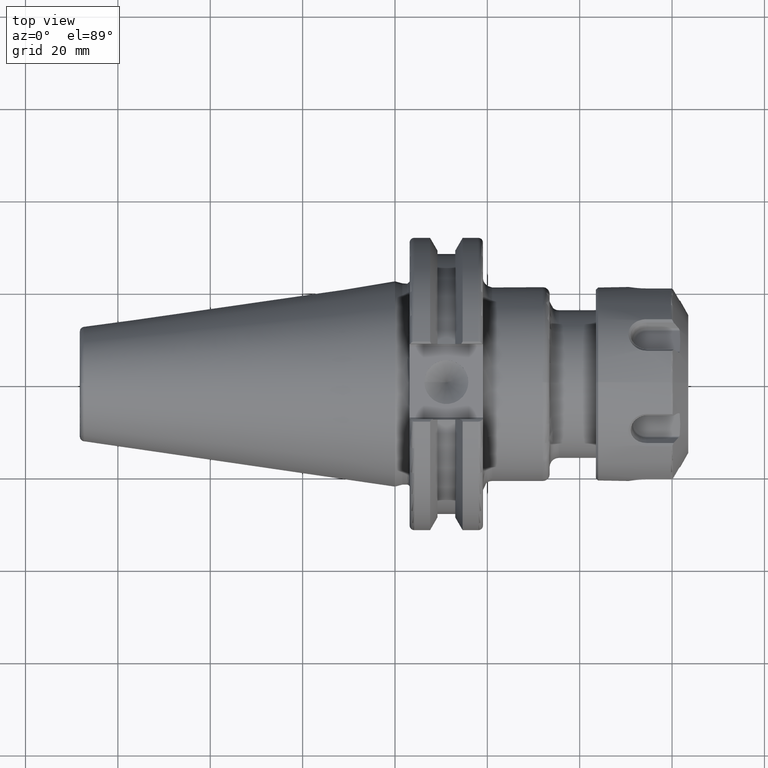
[diagram: clean part render]
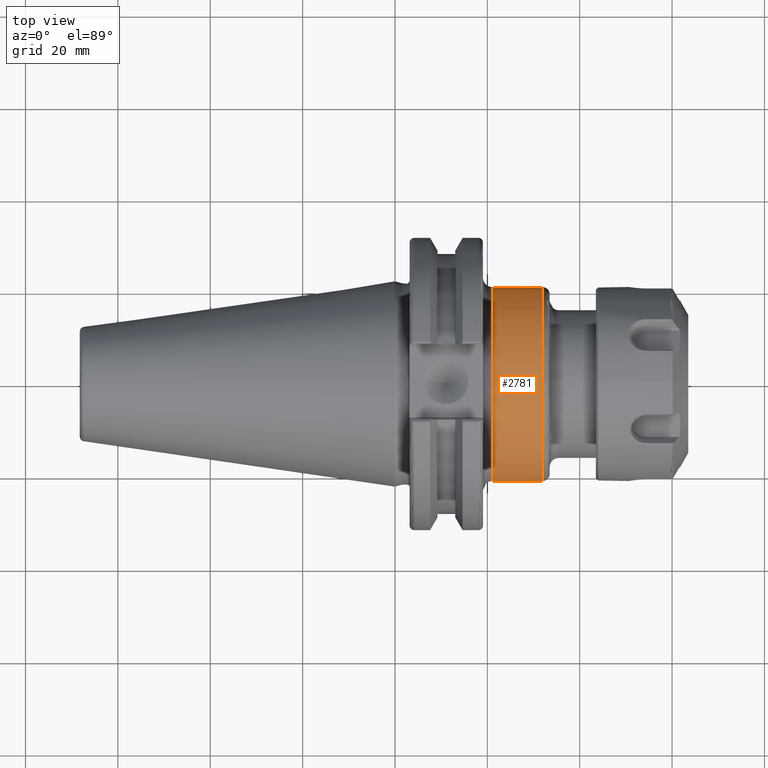
[diagram: same view with one face highlighted and labeled with its STEP entity id]
A machine part, top view. The second image highlights one B-rep face of the part: STEP entity #2781.
In plain terms, the highlighted cylindrical surface (bore or boss wall) has radius 21 mm, axis along (1, 0, 0).
Its self-contained STEP definition (entity closure, byte-faithful):
#255=CYLINDRICAL_SURFACE('',#3037,21.);
#398=FACE_OUTER_BOUND('',#566,.T.);
#566=EDGE_LOOP('',(#1956,#1957,#1958,#1959,#1960,#1961));
#745=LINE('',#4301,#924);
#924=VECTOR('',#3380,21.);
#1112=CIRCLE('',#3033,21.);
#1113=CIRCLE('',#3034,21.);
#1115=CIRCLE('',#3038,21.);
#1116=CIRCLE('',#3039,21.);
#1242=VERTEX_POINT('',#4291);
#1243=VERTEX_POINT('',#4293);
#1245=VERTEX_POINT('',#4300);
#1246=VERTEX_POINT('',#4302);
#1519=EDGE_CURVE('',#1242,#1243,#1112,.T.);
#1520=EDGE_CURVE('',#1243,#1242,#1113,.T.);
#1522=EDGE_CURVE('',#1243,#1245,#745,.T.);
#1523=EDGE_CURVE('',#1246,#1245,#1115,.T.);
#1524=EDGE_CURVE('',#1245,#1246,#1116,.T.);
#1956=ORIENTED_EDGE('',*,*,#1520,.F.);
#1957=ORIENTED_EDGE('',*,*,#1522,.T.);
#1958=ORIENTED_EDGE('',*,*,#1523,.F.);
#1959=ORIENTED_EDGE('',*,*,#1524,.F.);
#1960=ORIENTED_EDGE('',*,*,#1522,.F.);
#1961=ORIENTED_EDGE('',*,*,#1519,.F.);
#2781=ADVANCED_FACE('',(#398),#255,.T.);
#3033=AXIS2_PLACEMENT_3D('',#4294,#3370,#3371);
#3034=AXIS2_PLACEMENT_3D('',#4295,#3372,#3373);
#3037=AXIS2_PLACEMENT_3D('',#4299,#3378,#3379);
#3038=AXIS2_PLACEMENT_3D('',#4303,#3381,#3382);
#3039=AXIS2_PLACEMENT_3D('',#4304,#3383,#3384);
#3370=DIRECTION('center_axis',(1.,0.,0.));
#3371=DIRECTION('ref_axis',(0.,-1.,1.83697019872103E-16));
#3372=DIRECTION('center_axis',(1.,0.,0.));
#3373=DIRECTION('ref_axis',(0.,-1.,1.83697019872103E-16));
#3378=DIRECTION('center_axis',(1.,0.,0.));
#3379=DIRECTION('ref_axis',(0.,1.,0.));
#3380=DIRECTION('',(-1.,0.,0.));
#3381=DIRECTION('center_axis',(-1.,0.,0.));
#3382=DIRECTION('ref_axis',(0.,-1.,-1.22464679914735E-16));
#3383=DIRECTION('center_axis',(-1.,0.,0.));
#3384=DIRECTION('ref_axis',(0.,-1.,-1.22464679914735E-16));
#4291=CARTESIAN_POINT('',(32.,-2.57175827820944E-15,21.));
#4293=CARTESIAN_POINT('',(32.,-21.,-2.57175827820944E-15));
#4294=CARTESIAN_POINT('Origin',(32.,0.,0.));
#4295=CARTESIAN_POINT('Origin',(32.,0.,0.));
#4299=CARTESIAN_POINT('Origin',(26.275,0.,0.));
#4300=CARTESIAN_POINT('',(21.05,-21.,-2.57175827820944E-15));
#4301=CARTESIAN_POINT('',(26.275,-21.,-2.57175827820944E-15));
#4302=CARTESIAN_POINT('',(21.05,-2.57175827820944E-15,-21.));
#4303=CARTESIAN_POINT('Origin',(21.05,0.,0.));
#4304=CARTESIAN_POINT('Origin',(21.05,0.,0.));